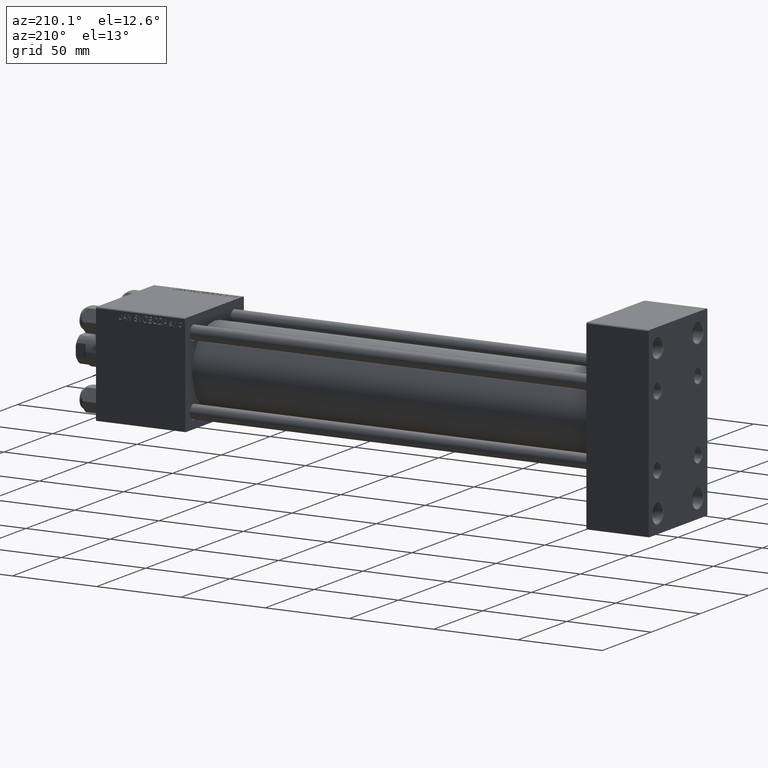
[diagram: clean part render]
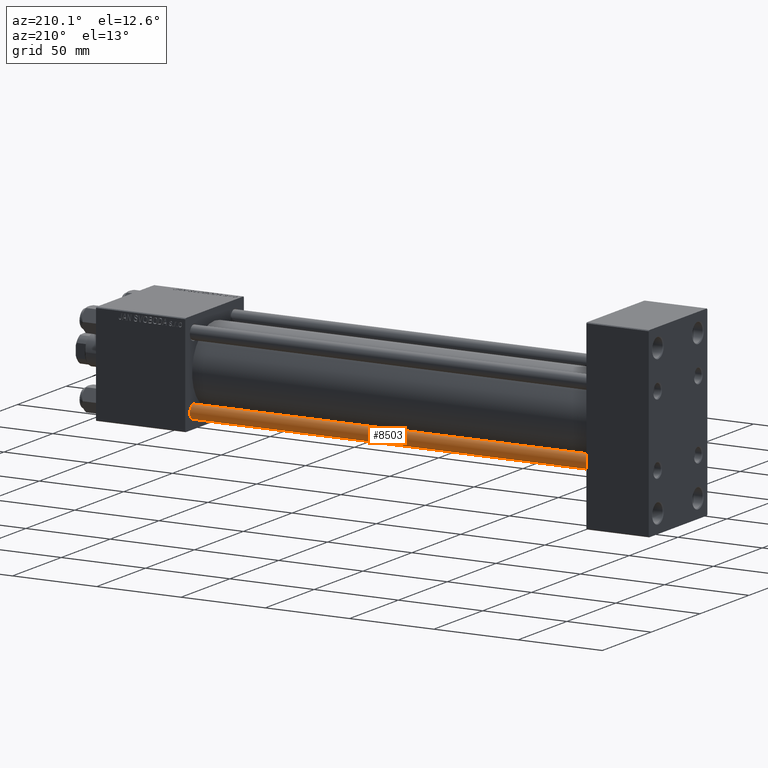
[diagram: same view with one face highlighted and labeled with its STEP entity id]
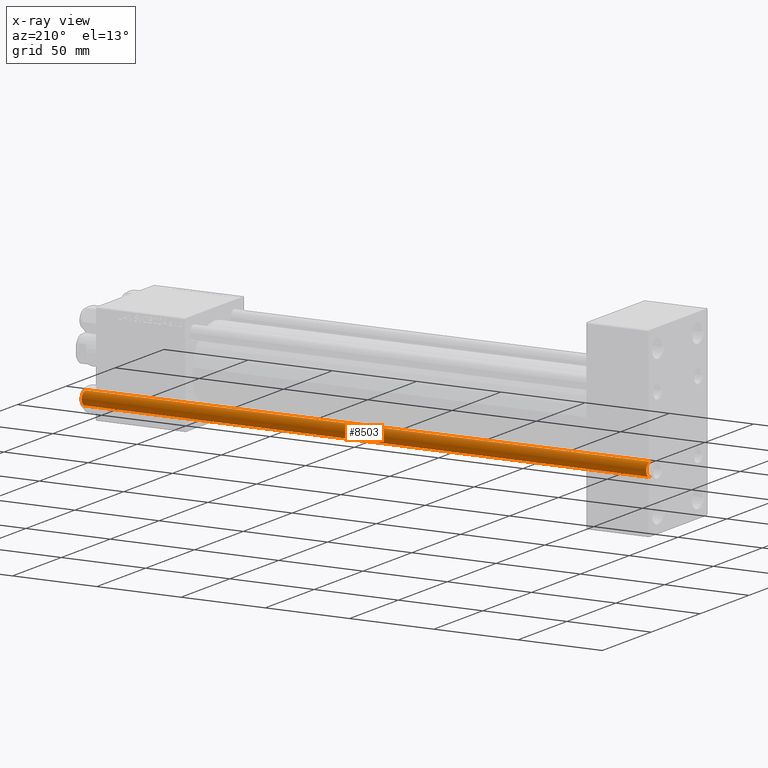
[diagram: x-ray of the same camera — body ghosted, the highlighted face saturated]
A machine part, auxiliary view. The second image highlights one B-rep face of the part: STEP entity #8503.
The next image is the same camera in x-ray: the body ghosted, the highlighted face saturated — about 0% of this face is hidden behind the body in this view.
In plain terms, the highlighted cylindrical surface (edge-blend (fillet) strip) has radius 4 mm, axis along (-1, 0, 0).
Its self-contained STEP definition (entity closure, byte-faithful):
#2130 = DIRECTION ( 'NONE',  ( 1.000000000000000000, 0.000000000000000000, 0.000000000000000000 ) ) ;
#2312 = VERTEX_POINT ( 'NONE', #24263 ) ;
#2402 = VERTEX_POINT ( 'NONE', #48711 ) ;
#6875 = LINE ( 'NONE', #51122, #21672 ) ;
#7349 = CARTESIAN_POINT ( 'NONE',  ( -4.000000000000000000, 0.000000000000000000, 0.5000000000003335110 ) ) ;
#8503 = ADVANCED_FACE ( 'NONE', ( #25701 ), #33068, .T. ) ;
#11683 = DIRECTION ( 'NONE',  ( 0.000000000000000000, 0.000000000000000000, -1.000000000000000000 ) ) ;
#12533 = DIRECTION ( 'NONE',  ( -1.000000000000000000, 0.000000000000000000, 0.000000000000000000 ) ) ;
#13734 = VERTEX_POINT ( 'NONE', #7349 ) ;
#14303 = ORIENTED_EDGE ( 'NONE', *, *, #49389, .F. ) ;
#14848 = CIRCLE ( 'NONE', #47652, 4.000000000000000000 ) ;
#15067 = DIRECTION ( 'NONE',  ( -0.000000000000000000, -0.000000000000000000, -1.000000000000000000 ) ) ;
#15154 = ORIENTED_EDGE ( 'NONE', *, *, #47680, .T. ) ;
#15721 = VECTOR ( 'NONE', #40742, 1000.000000000000000 ) ;
#16488 = VERTEX_POINT ( 'NONE', #46471 ) ;
#16545 = LINE ( 'NONE', #24711, #15721 ) ;
#17311 = EDGE_CURVE ( 'NONE', #13734, #2402, #30054, .T. ) ;
#18873 = EDGE_LOOP ( 'NONE', ( #14303, #22311, #15154, #35591 ) ) ;
#21672 = VECTOR ( 'NONE', #15067, 1000.000000000000000 ) ;
#22311 = ORIENTED_EDGE ( 'NONE', *, *, #47236, .T. ) ;
#24263 = CARTESIAN_POINT ( 'NONE',  ( 4.000000000000000000, 4.898587196589411843E-16, 335.5000000000001705 ) ) ;
#24711 = CARTESIAN_POINT ( 'NONE',  ( -4.000000000000000000, 0.000000000000000000, 336.0000000000000000 ) ) ;
#25701 = FACE_OUTER_BOUND ( 'NONE', #18873, .T. ) ;
#29651 = CARTESIAN_POINT ( 'NONE',  ( 0.000000000000000000, 0.000000000000000000, 336.0000000000000000 ) ) ;
#30054 = CIRCLE ( 'NONE', #32570, 4.000000000000000000 ) ;
#32570 = AXIS2_PLACEMENT_3D ( 'NONE', #41887, #46092, #2130 ) ;
#33068 = CYLINDRICAL_SURFACE ( 'NONE', #46641, 4.000000000000000000 ) ;
#35370 = CARTESIAN_POINT ( 'NONE',  ( 0.000000000000000000, 0.000000000000000000, 335.5000000000001705 ) ) ;
#35591 = ORIENTED_EDGE ( 'NONE', *, *, #17311, .T. ) ;
#40742 = DIRECTION ( 'NONE',  ( -0.000000000000000000, -0.000000000000000000, -1.000000000000000000 ) ) ;
#41730 = DIRECTION ( 'NONE',  ( -0.000000000000000000, -0.000000000000000000, -1.000000000000000000 ) ) ;
#41887 = CARTESIAN_POINT ( 'NONE',  ( 0.000000000000000000, 0.000000000000000000, 0.5000000000003335110 ) ) ;
#44759 = DIRECTION ( 'NONE',  ( 1.000000000000000000, 0.000000000000000000, 0.000000000000000000 ) ) ;
#46092 = DIRECTION ( 'NONE',  ( -0.000000000000000000, -0.000000000000000000, 1.000000000000000000 ) ) ;
#46471 = CARTESIAN_POINT ( 'NONE',  ( -4.000000000000000000, 0.000000000000000000, 335.5000000000001705 ) ) ;
#46641 = AXIS2_PLACEMENT_3D ( 'NONE', #29651, #41730, #12533 ) ;
#47236 = EDGE_CURVE ( 'NONE', #2312, #16488, #14848, .T. ) ;
#47652 = AXIS2_PLACEMENT_3D ( 'NONE', #35370, #11683, #44759 ) ;
#47680 = EDGE_CURVE ( 'NONE', #16488, #13734, #16545, .T. ) ;
#48711 = CARTESIAN_POINT ( 'NONE',  ( 4.000000000000000000, 4.898587196589411843E-16, 0.5000000000003335110 ) ) ;
#49389 = EDGE_CURVE ( 'NONE', #2312, #2402, #6875, .T. ) ;
#51122 = CARTESIAN_POINT ( 'NONE',  ( 4.000000000000000000, 4.898587196589411843E-16, 336.0000000000000000 ) ) ;